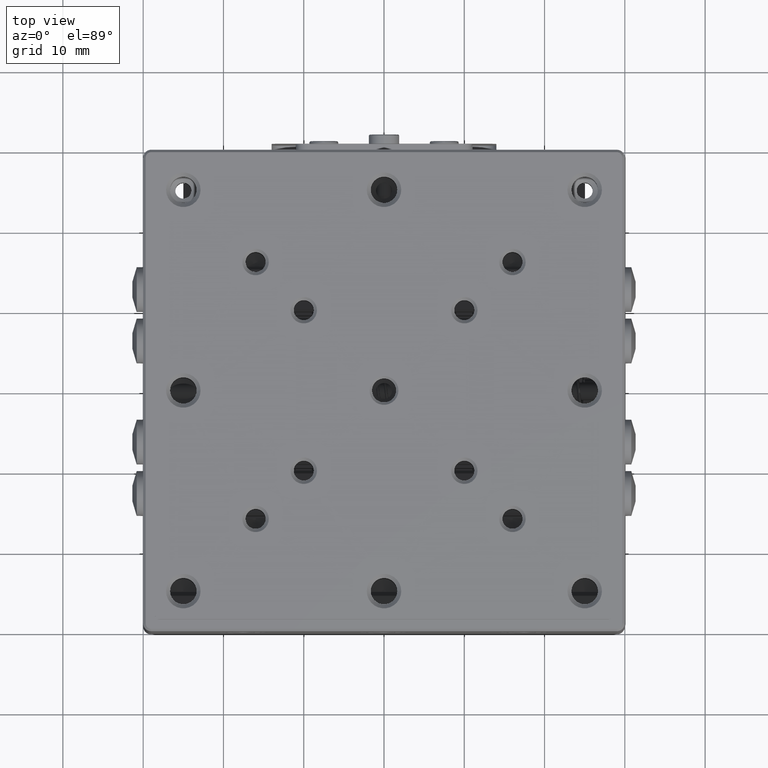
[diagram: clean part render]
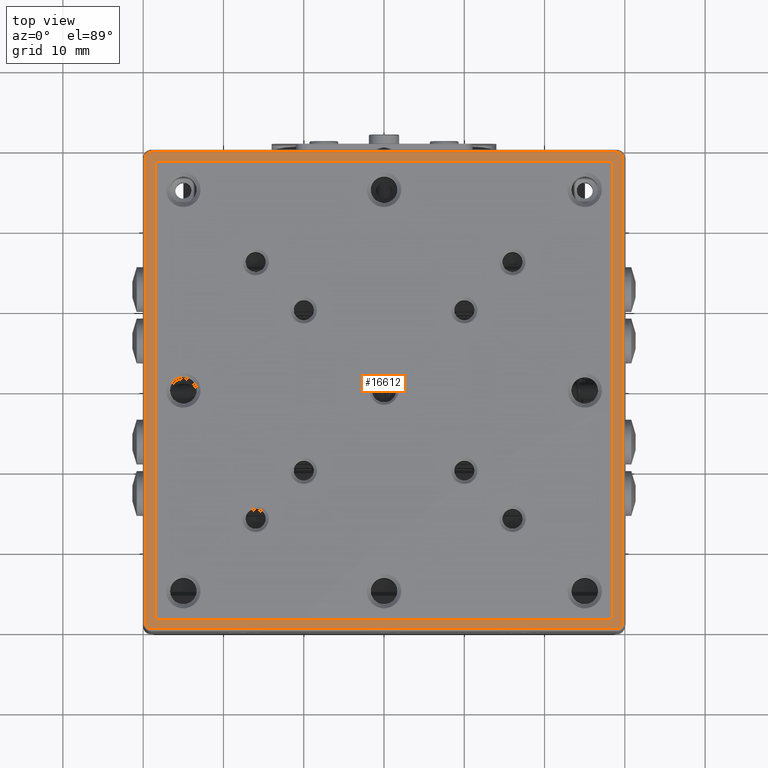
[diagram: same view with one face highlighted and labeled with its STEP entity id]
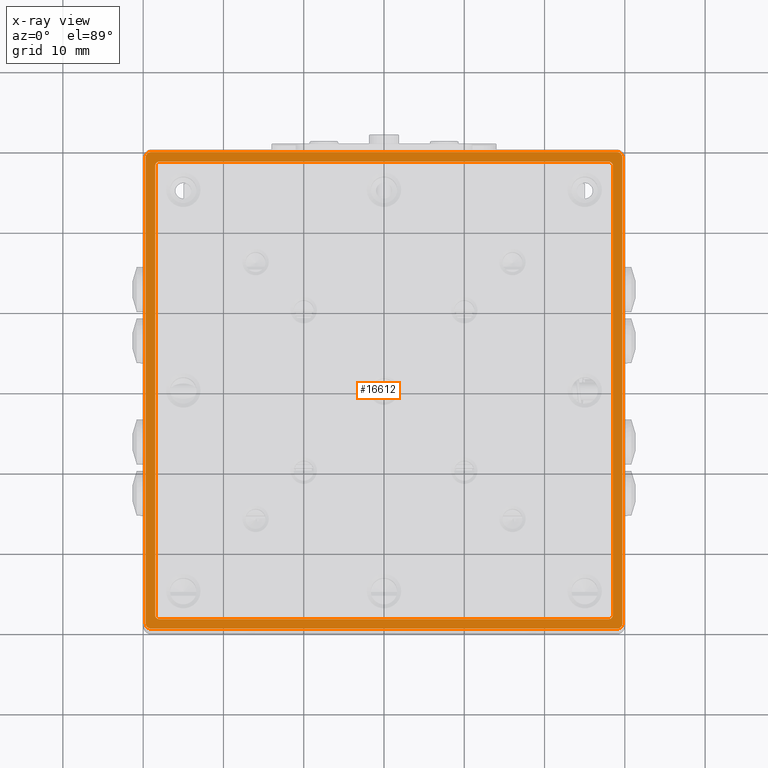
[diagram: x-ray of the same camera — body ghosted, the highlighted face saturated]
A machine part, top view. The second image highlights one B-rep face of the part: STEP entity #16612.
The next image is the same camera in x-ray: the body ghosted, the highlighted face saturated — about 0% of this face is hidden behind the body in this view.
In plain terms, the highlighted planar face has unit normal (0, -0, 1).
Its self-contained STEP definition (entity closure, byte-faithful):
#823 = CIRCLE ( 'NONE', #24345, 0.5000000000000004441 ) ;
#1213 = LINE ( 'NONE', #59102, #53589 ) ;
#1645 = DIRECTION ( 'NONE',  ( 0.000000000000000000, -0.000000000000000000, 1.000000000000000000 ) ) ;
#3969 = CARTESIAN_POINT ( 'NONE',  ( 29.69999999644999988, 0.000000000000000000, 11.30000000000000071 ) ) ;
#4777 = CARTESIAN_POINT ( 'NONE',  ( 28.50000000000000000, 28.50000000000000000, 11.30000000000000071 ) ) ;
#4861 = CARTESIAN_POINT ( 'NONE',  ( -28.50000000000000000, -28.50000000000000000, 11.30000000000000071 ) ) ;
#5216 = VERTEX_POINT ( 'NONE', #56456 ) ;
#5249 = LINE ( 'NONE', #28764, #96108 ) ;
#5278 = CARTESIAN_POINT ( 'NONE',  ( -29.69999999689375159, 29.00000000563500890, 11.30000000223713919 ) ) ;
#6193 = DIRECTION ( 'NONE',  ( -0.000000000000000000, -0.000000000000000000, 1.000000000000000000 ) ) ;
#6279 = EDGE_CURVE ( 'NONE', #81242, #8298, #87228, .T. ) ;
#6539 = ORIENTED_EDGE ( 'NONE', *, *, #40733, .T. ) ;
#7962 = ORIENTED_EDGE ( 'NONE', *, *, #76325, .F. ) ;
#8292 = CARTESIAN_POINT ( 'NONE',  ( 28.50000000000000000, -28.50000000000000000, 11.30000000000000071 ) ) ;
#8298 = VERTEX_POINT ( 'NONE', #38199 ) ;
#9983 = DIRECTION ( 'NONE',  ( 1.000000000000000000, 0.000000000000000000, 0.000000000000000000 ) ) ;
#9998 = CARTESIAN_POINT ( 'NONE',  ( 28.00000000000000000, 28.50000000000000000, 11.30000000000000071 ) ) ;
#10477 = CARTESIAN_POINT ( 'NONE',  ( 28.00000000000000000, -28.00000000000000000, 11.30000000000000071 ) ) ;
#10853 = DIRECTION ( 'NONE',  ( 0.000000000000000000, 1.000000000000000000, 0.000000000000000000 ) ) ;
#13250 = CARTESIAN_POINT ( 'NONE',  ( -29.00000000000000000, -29.00000000000000000, 11.30000000000563887 ) ) ;
#13560 = CARTESIAN_POINT ( 'NONE',  ( -29.00000000000000000, 29.00000000000000000, 11.30000000358677426 ) ) ;
#14694 = CIRCLE ( 'NONE', #69451, 0.5000000000000004441 ) ;
#16214 = EDGE_CURVE ( 'NONE', #58160, #71035, #83523, .T. ) ;
#16417 = EDGE_CURVE ( 'NONE', #81242, #75927, #14694, .T. ) ;
#16612 = ADVANCED_FACE ( 'NONE', ( #89933, #77123 ), #91365, .T. ) ;
#17683 = CARTESIAN_POINT ( 'NONE',  ( 28.50000000000000000, -28.00000000000000000, 11.30000000000000071 ) ) ;
#19900 = VERTEX_POINT ( 'NONE', #91174 ) ;
#20425 = DIRECTION ( 'NONE',  ( -1.000000000000000000, 0.000000000000000000, 0.000000000000000000 ) ) ;
#20948 = DIRECTION ( 'NONE',  ( -0.000000000000000000, -1.000000000000000000, 0.000000000000000000 ) ) ;
#21808 = DIRECTION ( 'NONE',  ( 0.000000000000000000, 0.000000000000000000, 1.000000000000000000 ) ) ;
#23178 = VERTEX_POINT ( 'NONE', #96547 ) ;
#24345 = AXIS2_PLACEMENT_3D ( 'NONE', #10477, #77102, #9983 ) ;
#25167 = VECTOR ( 'NONE', #84385, 1000.000000000000000 ) ;
#26493 = CIRCLE ( 'NONE', #40633, 0.5000000000000004441 ) ;
#26500 = LINE ( 'NONE', #3969, #84665 ) ;
#27793 = DIRECTION ( 'NONE',  ( 1.000000000000000000, 0.000000000000000000, -0.000000000000000000 ) ) ;
#28764 = CARTESIAN_POINT ( 'NONE',  ( 0.000000000000000000, -29.69999999999999929, 11.30000000000000071 ) ) ;
#30480 = ORIENTED_EDGE ( 'NONE', *, *, #47891, .T. ) ;
#31090 = DIRECTION ( 'NONE',  ( 1.000000000000000000, 0.000000000000000000, 0.000000000000000000 ) ) ;
#31304 = DIRECTION ( 'NONE',  ( -1.000000000000000000, -0.000000000000000000, 0.000000000000000000 ) ) ;
#31308 = CARTESIAN_POINT ( 'NONE',  ( -29.00000000000000000, -29.69999999996716866, 11.30000000000281979 ) ) ;
#31529 = DIRECTION ( 'NONE',  ( 1.000000000000000000, 0.000000000000000000, -0.000000000000000000 ) ) ;
#31972 = ORIENTED_EDGE ( 'NONE', *, *, #35289, .T. ) ;
#32407 = LINE ( 'NONE', #69667, #25167 ) ;
#33136 = CARTESIAN_POINT ( 'NONE',  ( 29.00000000000000000, -29.69999999996716866, 11.30000000176778485 ) ) ;
#34206 = ORIENTED_EDGE ( 'NONE', *, *, #35479, .T. ) ;
#35241 = EDGE_CURVE ( 'NONE', #35784, #93823, #32407, .T. ) ;
#35289 = EDGE_CURVE ( 'NONE', #71035, #19900, #26500, .T. ) ;
#35479 = EDGE_CURVE ( 'NONE', #71422, #75927, #36749, .T. ) ;
#35784 = VERTEX_POINT ( 'NONE', #5278 ) ;
#36749 = LINE ( 'NONE', #8292, #87797 ) ;
#38125 = DIRECTION ( 'NONE',  ( 1.000000000000000000, 0.000000000000000000, 0.000000000000000000 ) ) ;
#38199 = CARTESIAN_POINT ( 'NONE',  ( -28.50000000000000000, 28.00000000000000000, 11.30000000000000071 ) ) ;
#39320 = CARTESIAN_POINT ( 'NONE',  ( -28.00000000000000000, -28.50000000000000000, 11.30000000000000071 ) ) ;
#40633 = AXIS2_PLACEMENT_3D ( 'NONE', #42580, #78396, #63723 ) ;
#40733 = EDGE_CURVE ( 'NONE', #60114, #85854, #64572, .T. ) ;
#40993 = AXIS2_PLACEMENT_3D ( 'NONE', #95079, #57813, #86290 ) ;
#41252 = AXIS2_PLACEMENT_3D ( 'NONE', #69266, #44803, #74699 ) ;
#42580 = CARTESIAN_POINT ( 'NONE',  ( 28.00000000000000000, 28.00000000000000000, 11.30000000000000071 ) ) ;
#42759 = ORIENTED_EDGE ( 'NONE', *, *, #16214, .T. ) ;
#43144 = DIRECTION ( 'NONE',  ( -0.000000000000000000, -0.000000000000000000, 1.000000000000000000 ) ) ;
#44803 = DIRECTION ( 'NONE',  ( -0.000000000000000000, -0.000000000000000000, 1.000000000000000000 ) ) ;
#44950 = ORIENTED_EDGE ( 'NONE', *, *, #68535, .F. ) ;
#46208 = AXIS2_PLACEMENT_3D ( 'NONE', #13250, #43144, #51461 ) ;
#46310 = CARTESIAN_POINT ( 'NONE',  ( -28.00000000000000000, 28.00000000000000000, 11.30000000000000071 ) ) ;
#47891 = EDGE_CURVE ( 'NONE', #19900, #23178, #83265, .T. ) ;
#48941 = ORIENTED_EDGE ( 'NONE', *, *, #6279, .T. ) ;
#49742 = ORIENTED_EDGE ( 'NONE', *, *, #84539, .T. ) ;
#51461 = DIRECTION ( 'NONE',  ( -1.000000000000000000, 0.000000000000000000, 0.000000000000000000 ) ) ;
#52233 = DIRECTION ( 'NONE',  ( -1.000000000000000000, -0.000000000000000000, 0.000000000000000000 ) ) ;
#53589 = VECTOR ( 'NONE', #52233, 1000.000000000000000 ) ;
#54959 = CARTESIAN_POINT ( 'NONE',  ( -28.00000000000000000, 28.50000000000000000, 11.30000000000000071 ) ) ;
#55097 = CARTESIAN_POINT ( 'NONE',  ( 29.69999999689375159, -29.00000000563500890, 11.30000000220871748 ) ) ;
#56199 = ORIENTED_EDGE ( 'NONE', *, *, #56220, .T. ) ;
#56220 = EDGE_CURVE ( 'NONE', #81220, #58160, #5249, .T. ) ;
#56456 = CARTESIAN_POINT ( 'NONE',  ( -29.00000000000000000, 29.69999999831422599, 11.30000000176778485 ) ) ;
#56624 = ORIENTED_EDGE ( 'NONE', *, *, #57307, .T. ) ;
#57307 = EDGE_CURVE ( 'NONE', #93823, #81220, #93194, .T. ) ;
#57813 = DIRECTION ( 'NONE',  ( -0.000000000000000000, -0.000000000000000000, 1.000000000000000000 ) ) ;
#58160 = VERTEX_POINT ( 'NONE', #33136 ) ;
#59102 = CARTESIAN_POINT ( 'NONE',  ( 0.000000000000000000, 29.69999999663000168, 11.30000000000000071 ) ) ;
#60006 = CIRCLE ( 'NONE', #72505, 0.5000000000000004441 ) ;
#60114 = VERTEX_POINT ( 'NONE', #62306 ) ;
#60274 = ORIENTED_EDGE ( 'NONE', *, *, #74457, .T. ) ;
#62306 = CARTESIAN_POINT ( 'NONE',  ( 28.50000000000000000, 28.00000000000000000, 11.30000000000000071 ) ) ;
#62843 = EDGE_CURVE ( 'NONE', #96902, #8298, #60006, .T. ) ;
#63723 = DIRECTION ( 'NONE',  ( 1.000000000000000000, 0.000000000000000000, 0.000000000000000000 ) ) ;
#64318 = EDGE_CURVE ( 'NONE', #23178, #5216, #1213, .T. ) ;
#64572 = LINE ( 'NONE', #4777, #84512 ) ;
#65591 = AXIS2_PLACEMENT_3D ( 'NONE', #13560, #6193, #20425 ) ;
#67534 = CARTESIAN_POINT ( 'NONE',  ( -28.50000000000000000, 28.50000000000000000, 11.30000000000000071 ) ) ;
#68535 = EDGE_CURVE ( 'NONE', #71422, #85854, #823, .T. ) ;
#69266 = CARTESIAN_POINT ( 'NONE',  ( 29.00000000000000000, -29.00000000000000000, 11.30000000352993084 ) ) ;
#69451 = AXIS2_PLACEMENT_3D ( 'NONE', #82095, #21808, #81122 ) ;
#69667 = CARTESIAN_POINT ( 'NONE',  ( -29.69999999644999988, 0.000000000000000000, 11.30000000000000071 ) ) ;
#71035 = VERTEX_POINT ( 'NONE', #55097 ) ;
#71422 = VERTEX_POINT ( 'NONE', #90442 ) ;
#71569 = EDGE_LOOP ( 'NONE', ( #87697, #56624, #56199, #42759, #31972, #30480, #84446, #49742 ) ) ;
#72505 = AXIS2_PLACEMENT_3D ( 'NONE', #46310, #76667, #31090 ) ;
#74457 = EDGE_CURVE ( 'NONE', #96902, #80569, #74899, .T. ) ;
#74699 = DIRECTION ( 'NONE',  ( -1.000000000000000000, 0.000000000000000000, 0.000000000000000000 ) ) ;
#74899 = LINE ( 'NONE', #67534, #85793 ) ;
#74962 = CIRCLE ( 'NONE', #65591, 0.6999999963604764952 ) ;
#75813 = AXIS2_PLACEMENT_3D ( 'NONE', #91854, #1645, #31529 ) ;
#75927 = VERTEX_POINT ( 'NONE', #39320 ) ;
#76325 = EDGE_CURVE ( 'NONE', #60114, #80569, #26493, .T. ) ;
#76667 = DIRECTION ( 'NONE',  ( 0.000000000000000000, 0.000000000000000000, 1.000000000000000000 ) ) ;
#77102 = DIRECTION ( 'NONE',  ( 0.000000000000000000, 0.000000000000000000, 1.000000000000000000 ) ) ;
#77123 = FACE_OUTER_BOUND ( 'NONE', #71569, .T. ) ;
#78396 = DIRECTION ( 'NONE',  ( 0.000000000000000000, 0.000000000000000000, 1.000000000000000000 ) ) ;
#80569 = VERTEX_POINT ( 'NONE', #9998 ) ;
#81122 = DIRECTION ( 'NONE',  ( 1.000000000000000000, 0.000000000000000000, 0.000000000000000000 ) ) ;
#81220 = VERTEX_POINT ( 'NONE', #31308 ) ;
#81242 = VERTEX_POINT ( 'NONE', #84749 ) ;
#82095 = CARTESIAN_POINT ( 'NONE',  ( -28.00000000000000000, -28.00000000000000000, 11.30000000000000071 ) ) ;
#83265 = CIRCLE ( 'NONE', #40993, 0.6999999966446935895 ) ;
#83523 = CIRCLE ( 'NONE', #41252, 0.6999999963531976510 ) ;
#84385 = DIRECTION ( 'NONE',  ( -0.000000000000000000, -1.000000000000000000, -0.000000000000000000 ) ) ;
#84446 = ORIENTED_EDGE ( 'NONE', *, *, #64318, .T. ) ;
#84512 = VECTOR ( 'NONE', #20948, 1000.000000000000000 ) ;
#84539 = EDGE_CURVE ( 'NONE', #5216, #35784, #74962, .T. ) ;
#84665 = VECTOR ( 'NONE', #10853, 1000.000000000000000 ) ;
#84749 = CARTESIAN_POINT ( 'NONE',  ( -28.50000000000000000, -28.00000000000000000, 11.30000000000000071 ) ) ;
#85793 = VECTOR ( 'NONE', #38125, 1000.000000000000000 ) ;
#85854 = VERTEX_POINT ( 'NONE', #17683 ) ;
#86290 = DIRECTION ( 'NONE',  ( -1.000000000000000000, 0.000000000000000000, 0.000000000000000000 ) ) ;
#86756 = VECTOR ( 'NONE', #94564, 1000.000000000000000 ) ;
#86978 = ORIENTED_EDGE ( 'NONE', *, *, #62843, .F. ) ;
#87228 = LINE ( 'NONE', #4861, #86756 ) ;
#87697 = ORIENTED_EDGE ( 'NONE', *, *, #35241, .T. ) ;
#87797 = VECTOR ( 'NONE', #31304, 1000.000000000000000 ) ;
#88801 = ORIENTED_EDGE ( 'NONE', *, *, #16417, .F. ) ;
#89177 = EDGE_LOOP ( 'NONE', ( #7962, #6539, #44950, #34206, #88801, #48941, #86978, #60274 ) ) ;
#89933 = FACE_BOUND ( 'NONE', #89177, .T. ) ;
#90442 = CARTESIAN_POINT ( 'NONE',  ( 28.00000000000000000, -28.50000000000000000, 11.30000000000000071 ) ) ;
#90666 = CARTESIAN_POINT ( 'NONE',  ( -29.69999999819216541, -29.00000000000000000, 11.30000000000563887 ) ) ;
#91174 = CARTESIAN_POINT ( 'NONE',  ( 29.69999999822422865, 29.00000000000000000, 11.30000000162567630 ) ) ;
#91365 = PLANE ( 'NONE',  #75813 ) ;
#91854 = CARTESIAN_POINT ( 'NONE',  ( 0.000000000000000000, 0.000000000000000000, 11.30000000000000071 ) ) ;
#93194 = CIRCLE ( 'NONE', #46208, 0.6999999999343330392 ) ;
#93823 = VERTEX_POINT ( 'NONE', #90666 ) ;
#94564 = DIRECTION ( 'NONE',  ( -0.000000000000000000, 1.000000000000000000, 0.000000000000000000 ) ) ;
#95079 = CARTESIAN_POINT ( 'NONE',  ( 29.00000000000000000, 29.00000000000000000, 11.30000000330255716 ) ) ;
#96108 = VECTOR ( 'NONE', #27793, 1000.000000000000000 ) ;
#96547 = CARTESIAN_POINT ( 'NONE',  ( 29.00000000919500920, 29.69999999705125049, 11.30000000207252953 ) ) ;
#96902 = VERTEX_POINT ( 'NONE', #54959 ) ;